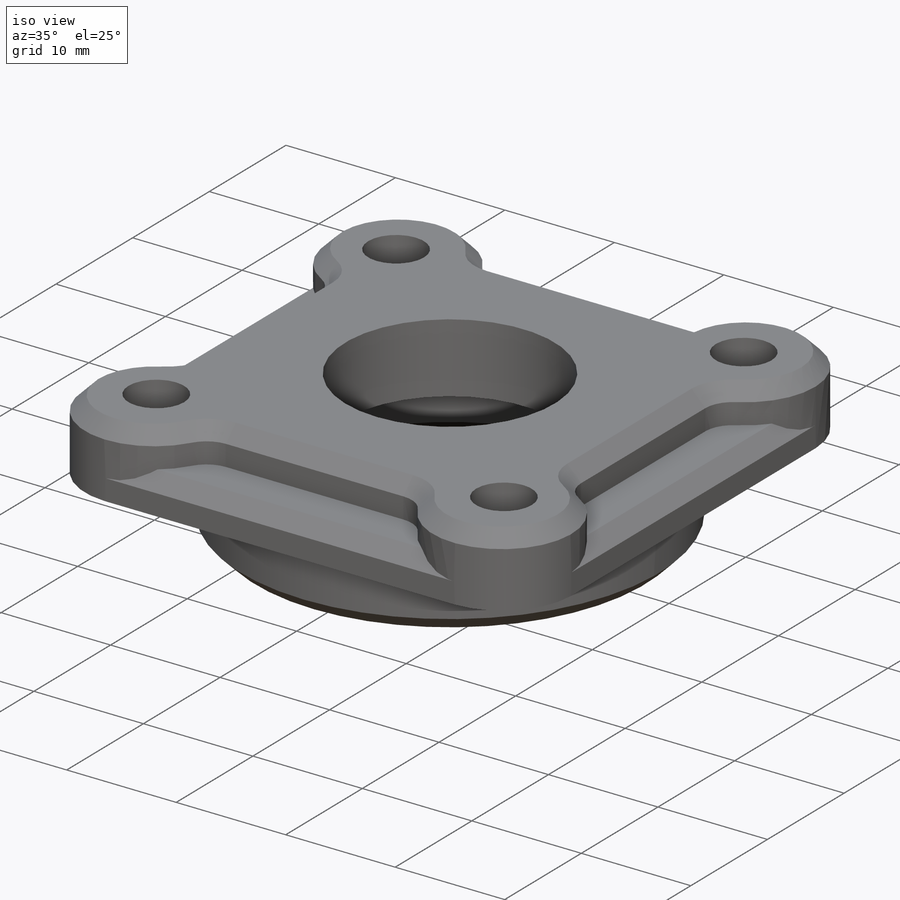
[diagram: iso view]
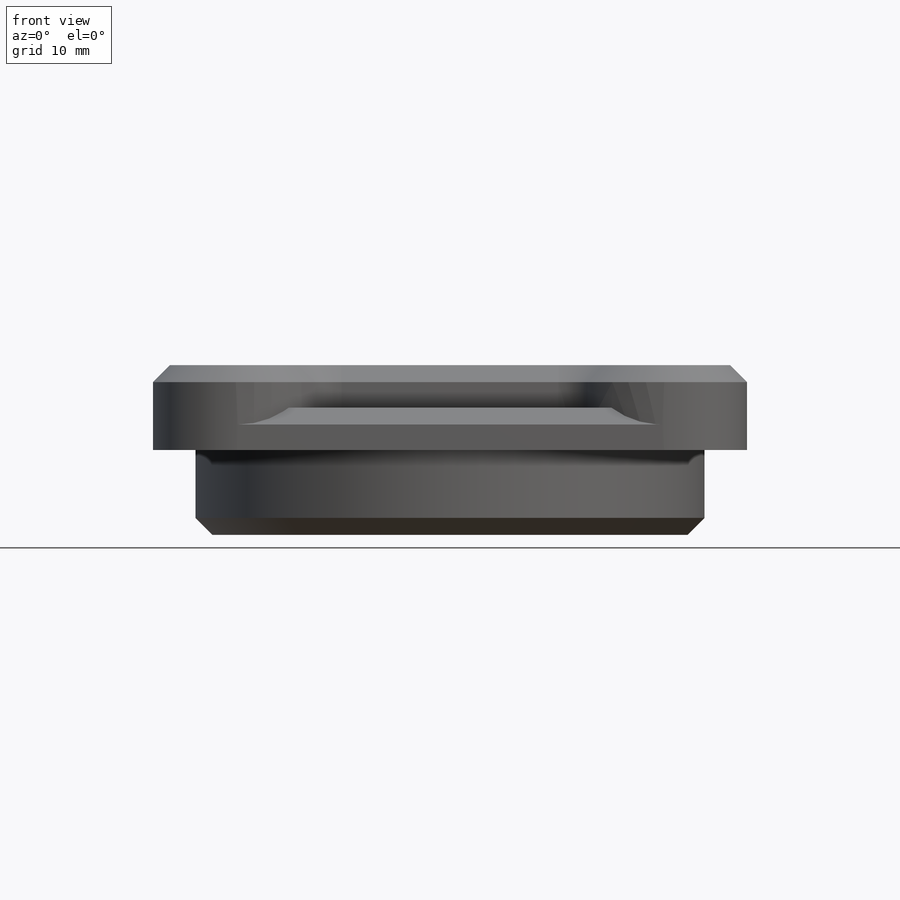
[diagram: front view]
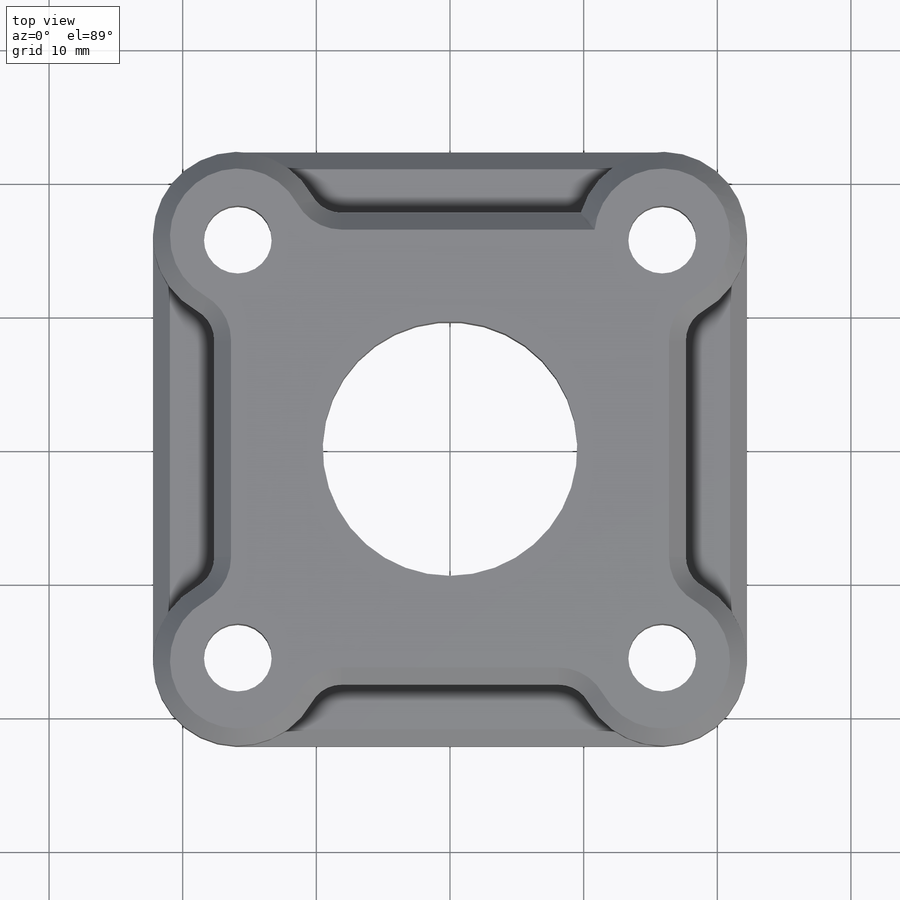
[diagram: top view]
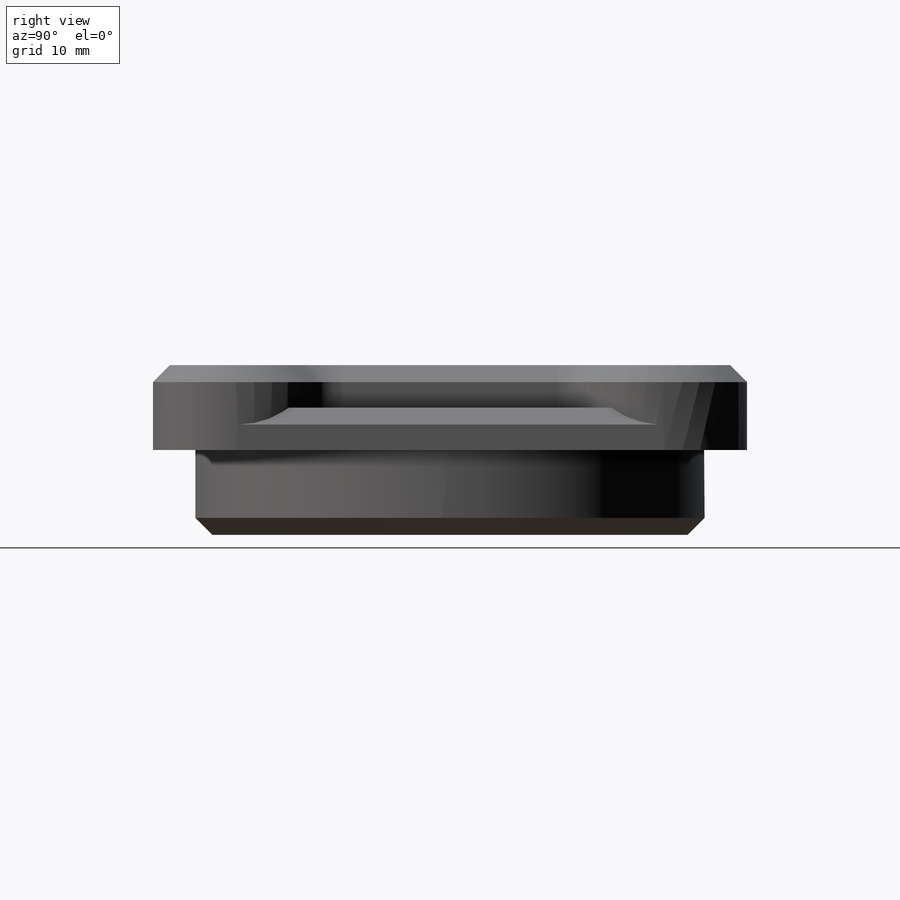
[diagram: right view]
SOLIDWORKS PART (.sldprt)
format: sldprt  version: not decoded by parser v0  size: 685,568 bytes
history: native  units: mm
features: sketch x5, extrude x3, cut_extrude x2, material x1, chamfer x1 (+11 scaffold rows collapsed)
feature tree (23):
  scaffold x11  (default folders/planes/origin — collapsed)
  material  "6061 Alloy"
  sketch  "Sketch1"  dims[c1.D1=19.05mm c1.D3=12.7mm c2.D1=44.45mm c2.D2=44.45mm c3.D1=44.45mm c3.D2=44.45mm]
  extrude  "Boss-Extrude1"  Depth=3.175mm
  sketch  "Sketch2"  dims[D3=2.54mm D1=~17.653645mm D2=17.653mm]
  extrude  "Boss-Extrude2"  Depth=3.175mm
  sketch  "Sketch3"  dims[D1=31.75mm D2=38.1mm]
  extrude  "Boss-Extrude3"  Depth=6.35mm
  sketch  "Sketch4"  dims[D1=5.08mm D2=~15.639419mm]
  cut_extrude  "Cut-Extrude1"  [1 undecoded]
  chamfer  "Chamfer1"  Distance=1.27mm Angle=45deg
  sketch  "Sketch5"  dims[D1=19.05mm]
  cut_extrude  "Cut-Extrude2"  [1 undecoded]
decode coverage: 9 of 11 modeling features carry decoded parameters
note: ~ marks probable driven/reference dimensions
note: 2 parameter values undecoded
note: suppression state not decoded; provenance and decode notes live in map.json
